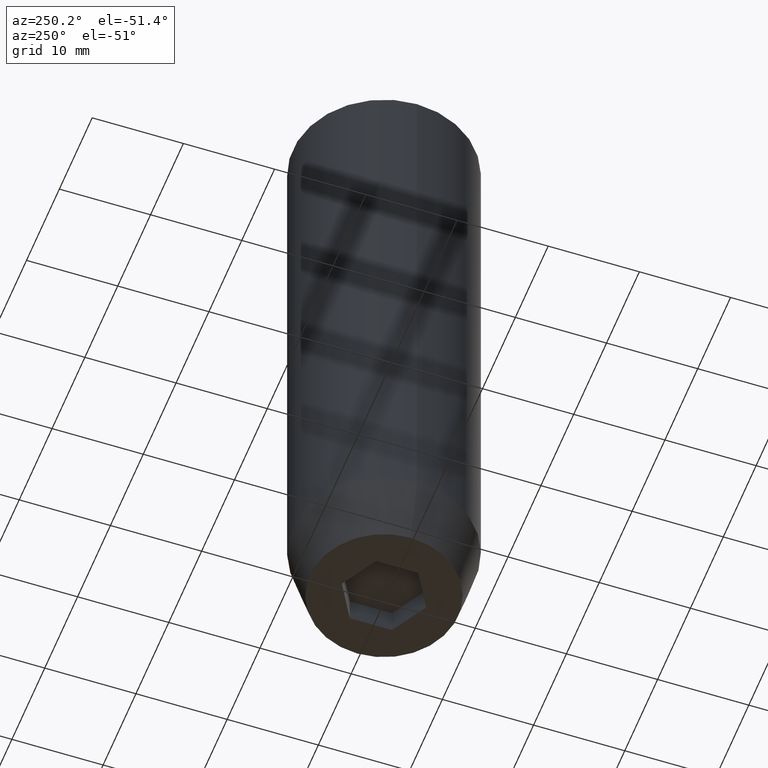
[diagram: clean part render]
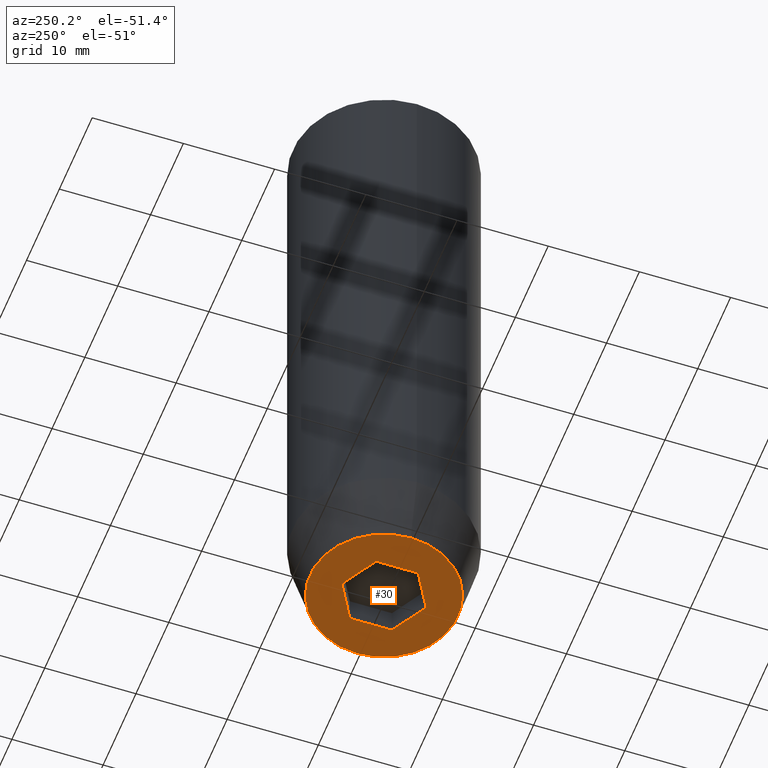
[diagram: same view with one face highlighted and labeled with its STEP entity id]
A machine part, auxiliary view. The second image highlights one B-rep face of the part: STEP entity #30.
In plain terms, the highlighted planar face has unit normal (0, 0, -1).
Its self-contained STEP definition (entity closure, byte-faithful):
#3 = CARTESIAN_POINT ( 'NONE',  ( 4.000000000000000000, 0.000000000000000000, -70.00000000000000000 ) ) ;
#7 = LINE ( 'NONE', #306, #576 ) ;
#12 = DIRECTION ( 'NONE',  ( -0.000000000000000000, -0.000000000000000000, 1.000000000000000000 ) ) ;
#17 = VERTEX_POINT ( 'NONE', #136 ) ;
#21 = EDGE_CURVE ( 'NONE', #17, #362, #302, .T. ) ;
#23 = EDGE_CURVE ( 'NONE', #227, #267, #385, .T. ) ;
#24 = EDGE_LOOP ( 'NONE', ( #180, #581, #41, #526, #49, #62 ) ) ;
#28 = AXIS2_PLACEMENT_3D ( 'NONE', #402, #12, #439 ) ;
#30 = ADVANCED_FACE ( 'NONE', ( #367, #457 ), #505, .T. ) ;
#35 = DIRECTION ( 'NONE',  ( 0.000000000000000000, 1.000000000000000000, 0.000000000000000000 ) ) ;
#39 = VERTEX_POINT ( 'NONE', #559 ) ;
#41 = ORIENTED_EDGE ( 'NONE', *, *, #353, .F. ) ;
#45 = LINE ( 'NONE', #254, #399 ) ;
#49 = ORIENTED_EDGE ( 'NONE', *, *, #364, .F. ) ;
#59 = DIRECTION ( 'NONE',  ( 1.000000000000000000, 0.000000000000000000, 0.000000000000000000 ) ) ;
#62 = ORIENTED_EDGE ( 'NONE', *, *, #231, .F. ) ;
#72 = CARTESIAN_POINT ( 'NONE',  ( -4.000000000000000000, -2.309401076758503368, -70.00000000000000000 ) ) ;
#87 = VECTOR ( 'NONE', #351, 1000.000000000000114 ) ;
#106 = CARTESIAN_POINT ( 'NONE',  ( 2.168404344971008868E-16, 4.618802153517005848, -70.00000000000000000 ) ) ;
#108 = ORIENTED_EDGE ( 'NONE', *, *, #510, .F. ) ;
#136 = CARTESIAN_POINT ( 'NONE',  ( 4.000000000000000000, -2.309401076758502480, -70.00000000000000000 ) ) ;
#146 = CARTESIAN_POINT ( 'NONE',  ( 0.000000000000000000, 0.000000000000000000, -70.00000000000000000 ) ) ;
#148 = AXIS2_PLACEMENT_3D ( 'NONE', #146, #304, #59 ) ;
#155 = LINE ( 'NONE', #513, #349 ) ;
#173 = CIRCLE ( 'NONE', #28, 8.124355652982135467 ) ;
#180 = ORIENTED_EDGE ( 'NONE', *, *, #401, .F. ) ;
#182 = LINE ( 'NONE', #348, #377 ) ;
#183 = DIRECTION ( 'NONE',  ( 0.000000000000000000, -1.000000000000000000, 0.000000000000000000 ) ) ;
#197 = DIRECTION ( 'NONE',  ( -1.000000000000000000, 0.000000000000000000, -0.000000000000000000 ) ) ;
#212 = ORIENTED_EDGE ( 'NONE', *, *, #23, .F. ) ;
#227 = VERTEX_POINT ( 'NONE', #359 ) ;
#231 = EDGE_CURVE ( 'NONE', #572, #360, #155, .T. ) ;
#254 = CARTESIAN_POINT ( 'NONE',  ( -4.000000000000000000, 0.000000000000000000, -70.00000000000000000 ) ) ;
#266 = EDGE_CURVE ( 'NONE', #580, #39, #45, .T. ) ;
#267 = VERTEX_POINT ( 'NONE', #418 ) ;
#273 = CARTESIAN_POINT ( 'NONE',  ( 4.000000000000000000, 2.309401076758503368, -70.00000000000000000 ) ) ;
#290 = AXIS2_PLACEMENT_3D ( 'NONE', #403, #562, #197 ) ;
#302 = LINE ( 'NONE', #355, #87 ) ;
#304 = DIRECTION ( 'NONE',  ( -0.000000000000000000, -0.000000000000000000, 1.000000000000000000 ) ) ;
#306 = CARTESIAN_POINT ( 'NONE',  ( -2.000000000000000888, -3.464101615137754386, -70.00000000000000000 ) ) ;
#310 = VECTOR ( 'NONE', #183, 1000.000000000000000 ) ;
#317 = DIRECTION ( 'NONE',  ( 0.8660254037844385966, -0.5000000000000001110, 0.000000000000000000 ) ) ;
#348 = CARTESIAN_POINT ( 'NONE',  ( -2.000000000000000000, 3.464101615137754830, -70.00000000000000000 ) ) ;
#349 = VECTOR ( 'NONE', #317, 1000.000000000000000 ) ;
#351 = DIRECTION ( 'NONE',  ( -0.8660254037844384856, -0.5000000000000002220, 0.000000000000000000 ) ) ;
#353 = EDGE_CURVE ( 'NONE', #362, #580, #7, .T. ) ;
#355 = CARTESIAN_POINT ( 'NONE',  ( 2.000000000000000888, -3.464101615137754386, -70.00000000000000000 ) ) ;
#357 = EDGE_LOOP ( 'NONE', ( #108, #212 ) ) ;
#359 = CARTESIAN_POINT ( 'NONE',  ( -8.124355652982135467, 1.109796706851640556E-15, -70.00000000000000000 ) ) ;
#360 = VERTEX_POINT ( 'NONE', #273 ) ;
#362 = VERTEX_POINT ( 'NONE', #371 ) ;
#364 = EDGE_CURVE ( 'NONE', #360, #17, #433, .T. ) ;
#367 = FACE_BOUND ( 'NONE', #24, .T. ) ;
#371 = CARTESIAN_POINT ( 'NONE',  ( 4.336808689942017736E-16, -4.618802153517006737, -70.00000000000000000 ) ) ;
#377 = VECTOR ( 'NONE', #539, 999.9999999999998863 ) ;
#385 = CIRCLE ( 'NONE', #148, 8.124355652982135467 ) ;
#399 = VECTOR ( 'NONE', #35, 1000.000000000000000 ) ;
#401 = EDGE_CURVE ( 'NONE', #39, #572, #182, .T. ) ;
#402 = CARTESIAN_POINT ( 'NONE',  ( 0.000000000000000000, 0.000000000000000000, -70.00000000000000000 ) ) ;
#403 = CARTESIAN_POINT ( 'NONE',  ( 0.000000000000000000, 8.124355652982135467, -70.00000000000000000 ) ) ;
#418 = CARTESIAN_POINT ( 'NONE',  ( 8.124355652982135467, 0.000000000000000000, -70.00000000000000000 ) ) ;
#433 = LINE ( 'NONE', #3, #310 ) ;
#439 = DIRECTION ( 'NONE',  ( 1.000000000000000000, 0.000000000000000000, 0.000000000000000000 ) ) ;
#457 = FACE_OUTER_BOUND ( 'NONE', #357, .T. ) ;
#493 = DIRECTION ( 'NONE',  ( -0.8660254037844384856, 0.5000000000000002220, 0.000000000000000000 ) ) ;
#505 = PLANE ( 'NONE',  #290 ) ;
#510 = EDGE_CURVE ( 'NONE', #267, #227, #173, .T. ) ;
#513 = CARTESIAN_POINT ( 'NONE',  ( 2.000000000000000444, 3.464101615137754386, -70.00000000000000000 ) ) ;
#526 = ORIENTED_EDGE ( 'NONE', *, *, #21, .F. ) ;
#539 = DIRECTION ( 'NONE',  ( 0.8660254037844387076, 0.5000000000000001110, 0.000000000000000000 ) ) ;
#559 = CARTESIAN_POINT ( 'NONE',  ( -4.000000000000000000, 2.309401076758503368, -70.00000000000000000 ) ) ;
#562 = DIRECTION ( 'NONE',  ( 0.000000000000000000, 0.000000000000000000, -1.000000000000000000 ) ) ;
#572 = VERTEX_POINT ( 'NONE', #106 ) ;
#576 = VECTOR ( 'NONE', #493, 1000.000000000000114 ) ;
#580 = VERTEX_POINT ( 'NONE', #72 ) ;
#581 = ORIENTED_EDGE ( 'NONE', *, *, #266, .F. ) ;